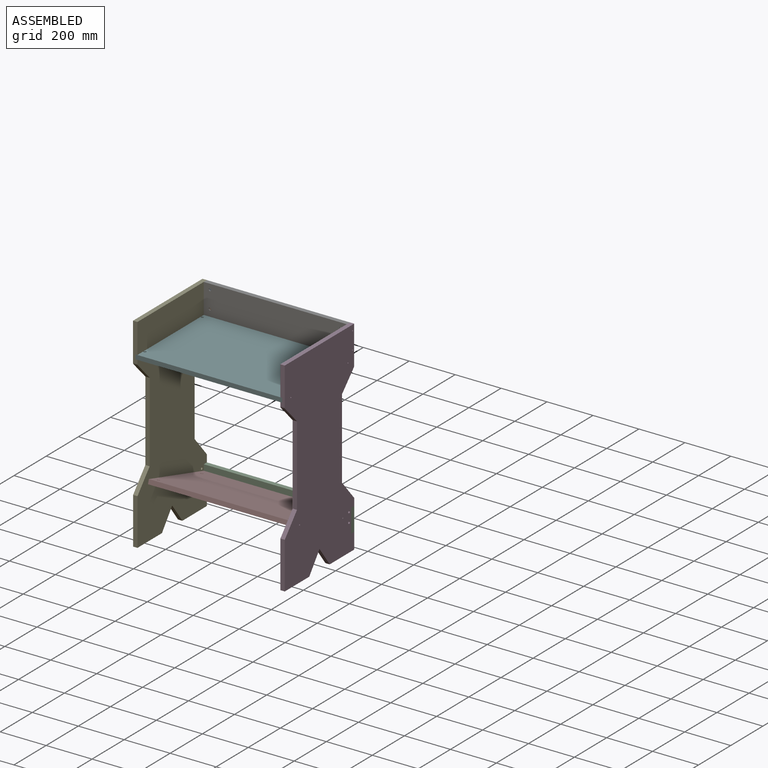
[diagram: assembled view]
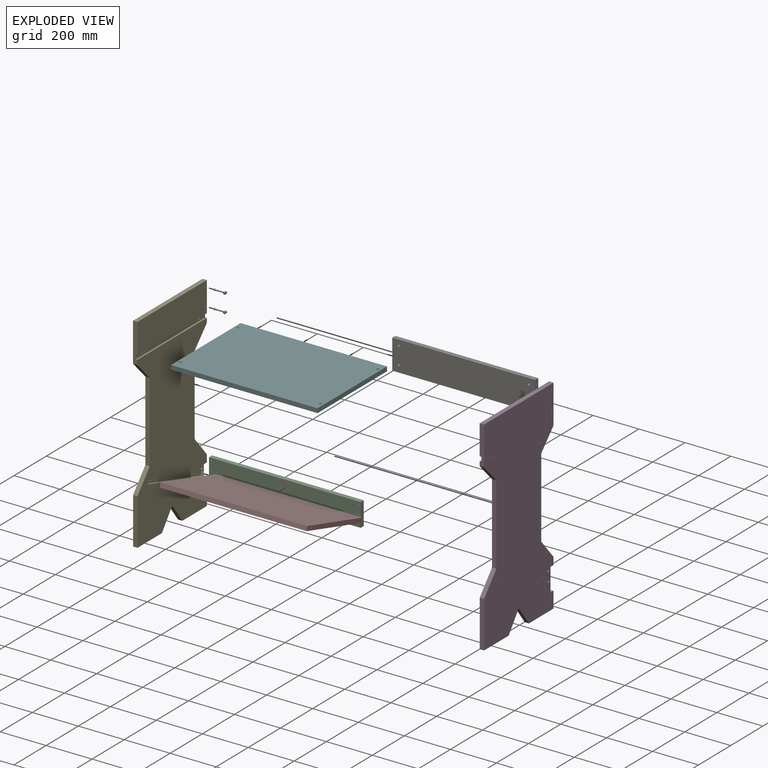
[diagram: exploded view]
GUIDED TOUR — MATED ASSEMBLY WITH SUBASSEMBLIES (Onshape document 586c0a6994bf4c102c246d1e, AutoMate assembly 586c0a6994bf4c102c246d1e_79e6db0add1751d0debfd375_e301d833208fc8bb05353f70_default)

This assembly has 10 component occurrences arranged in 8 top-level units: 6 individual components plus 2 subassemblies (S0, S1). The tour has two levels: first the top level, where each subassembly is treated as one rigid unit; then each subassembly is toured internally in its own section (nesting deeper than one subassembly level is flattened into its subassembly's section).

Components are labeled P0..P9 across the whole record; subassembly units are labeled S0..S1. A mate is a constraint between two units; its type names the relative motion it leaves free:
  FASTENED — locks the two components together rigidly (no relative motion),
  SLIDER — leaves translation along the listed axis free.
Axis/direction vectors are unit vectors and 'through' points are millimeter coordinates, both in the assembly's world frame.

TOP-LEVEL MATES (between units; each subassembly's internal mates are listed in its own section)
  1. FASTENED "Fastened 3": P6 <-> P5, direction (-1.000, 0.000, 0.000) through (-876.44, -210.24, 157.08) mm
  2. FASTENED "Fastened 6": S1 <-> P5, direction (-1.000, 0.000, 0.000) through (-887.87, 173.93, 196.79) mm
  3. FASTENED "Fastened 1": P8 <-> P4, direction (1.000, 0.000, 0.000) through (-237.63, -155.38, -364.90) mm
  4. FASTENED "Fastened 7": S0 <-> P5, direction (-1.000, 0.000, 0.000) through (-887.87, 173.93, 272.99) mm
  5. FASTENED "Fastened 5": P3 <-> P4, direction (0.000, -1.000, 0.000) through (-236.99, 164.73, -431.99) mm
  6. FASTENED "Fastened 4": P7 <-> P5, direction (-1.000, 0.000, 0.000) through (-868.82, 173.93, 272.99) mm
  7. FASTENED "Fastened 2": P8 <-> P5, direction (-1.000, 0.000, 0.000) through (-877.71, -155.38, -364.90) mm

TOP-LEVEL ASSEMBLY ORDER
  1. P6 — the base component [order verified]
  2. P5 [order verified]
  3. P4 [order verified]
  4. P3 [order verified]
  5. P7 [order verified]
  6. S1 [order verified]
  7. P8 [order verified]
  8. S0 [order verified]
(S1, P3, P4, P5 verified with a relaxed clearance tolerance: the source model stores slight part interference there.)
Order-tag legend:
  [order verified] — this step's position reverses a verified removal order: the component was checked to insert without passing through the ones already placed.

Of the 10 component occurrences, 2 carry the full construction recipe — the FeatureScript program that regenerates the part's solid from scratch; the rest are supplied as boundary geometry only. Each toured unit is shown spotlighted twice — assembled, then exploded with a leader line back to its socket (green = recipe-attached component, orange = geometry-only, blue = subassembly unit; the rest desaturated gray).
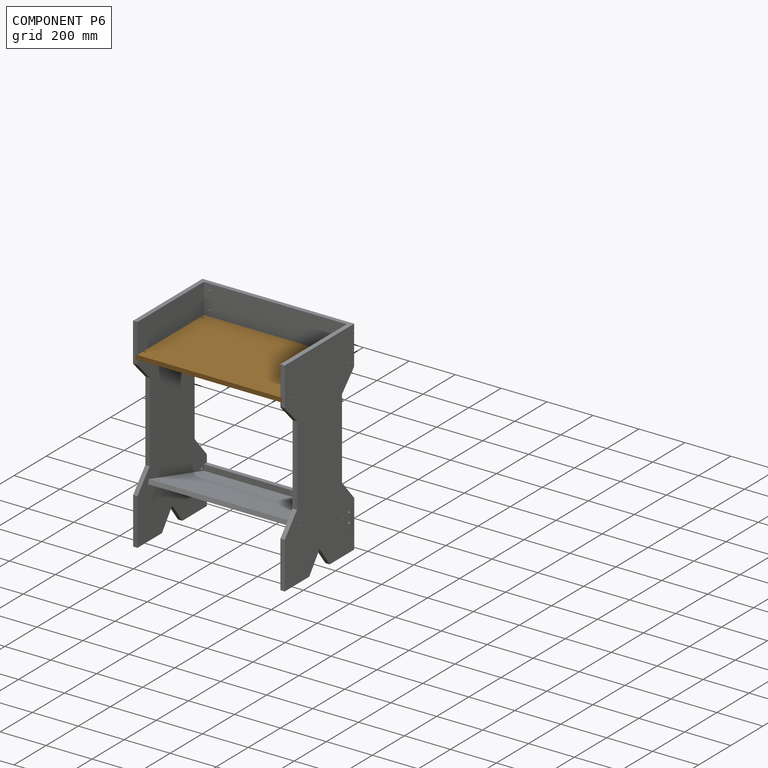
[diagram: component P6 — assembled]
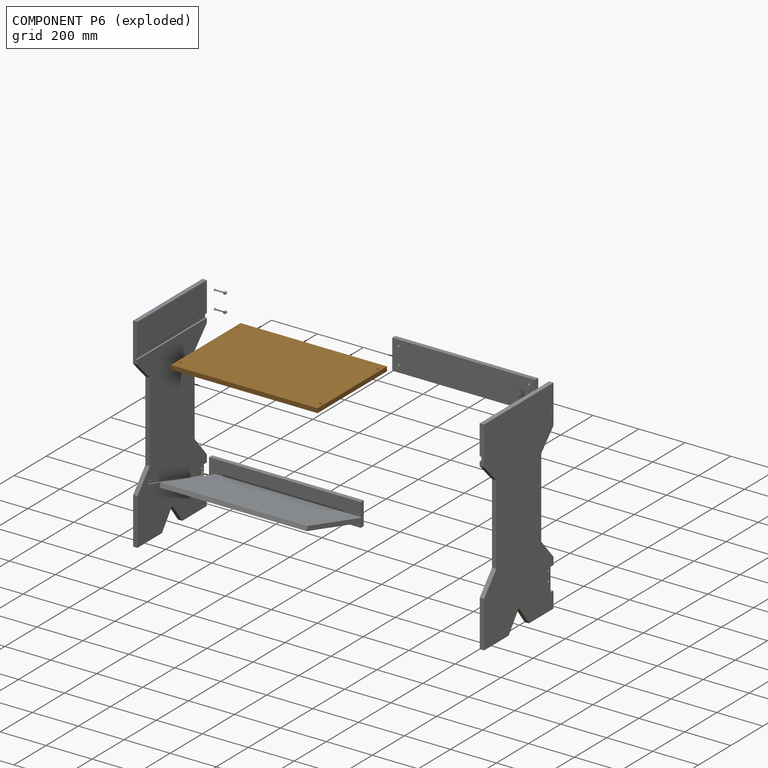
[diagram: component P6 — exploded]
COMPONENT P6 — geometry summary (no construction recipe available for this part):
  bounding box: 637.5 x 431.8 x 19.1 mm
  B-rep topology: 1 solid, 16 faces, 92 edges
  volume: 5211610 mm^3 (99% of its bounding box)
  symmetry: 2-fold rotationally symmetric about the x axis; 2-fold rotationally symmetric about the y axis; 2-fold rotationally symmetric about the z axis; mirror-symmetric across its x mid-plane, y mid-plane, z mid-plane
Held by: FASTENED mate "Fastened 3" to P5.
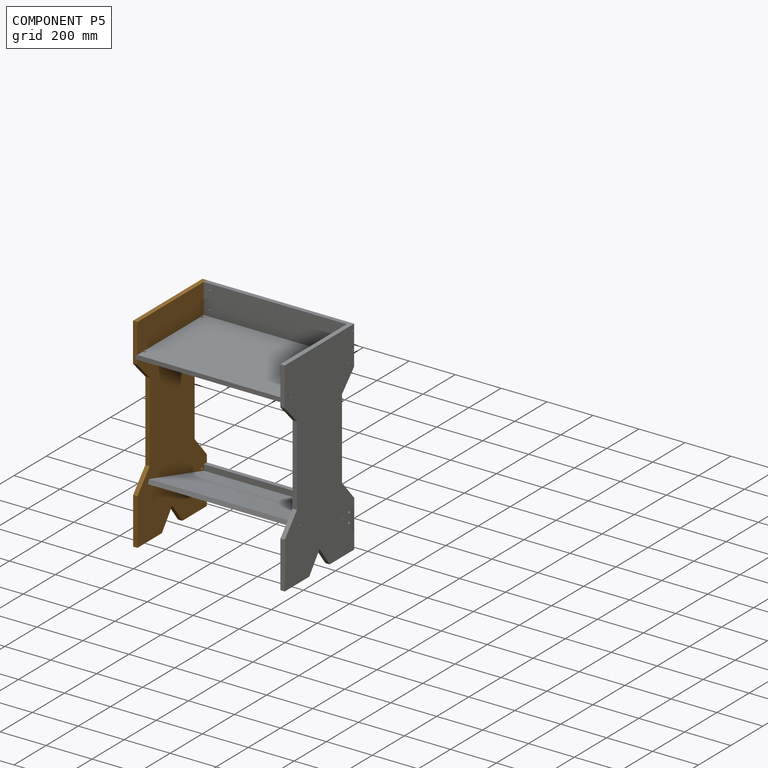
[diagram: component P5 — assembled]
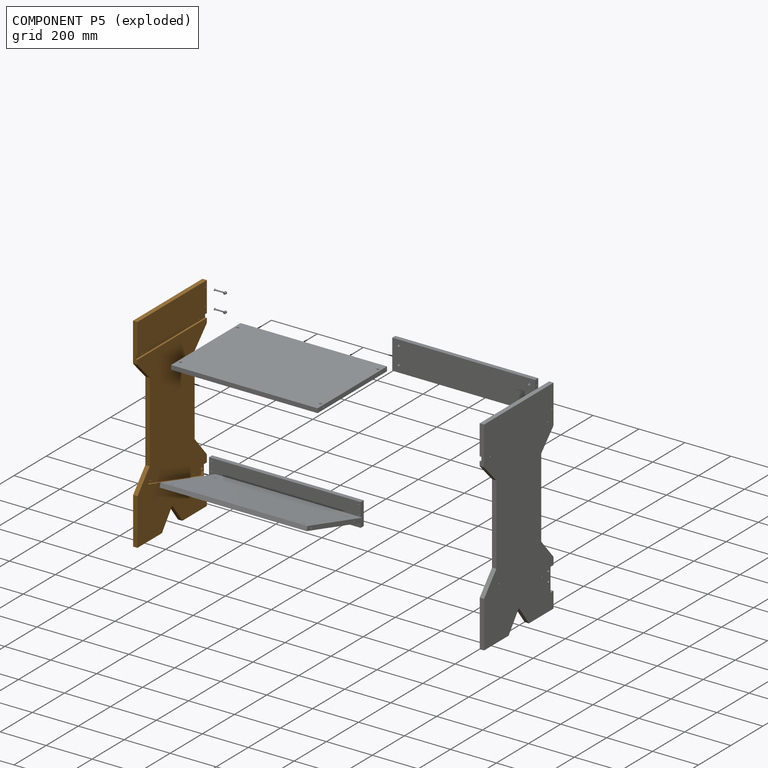
[diagram: component P5 — exploded]
COMPONENT P5 — geometry summary (no construction recipe available for this part):
  bounding box: 889.0 x 432.1 x 19.1 mm
  B-rep topology: 1 solid, 42 faces, 250 edges
  volume: 5787509 mm^3 (79% of its bounding box)
Held by: FASTENED mate "Fastened 3" to P6; FASTENED mate "Fastened 6" to P1; FASTENED mate "Fastened 7" to P0; FASTENED mate "Fastened 4" to P7; FASTENED mate "Fastened 2" to P8.
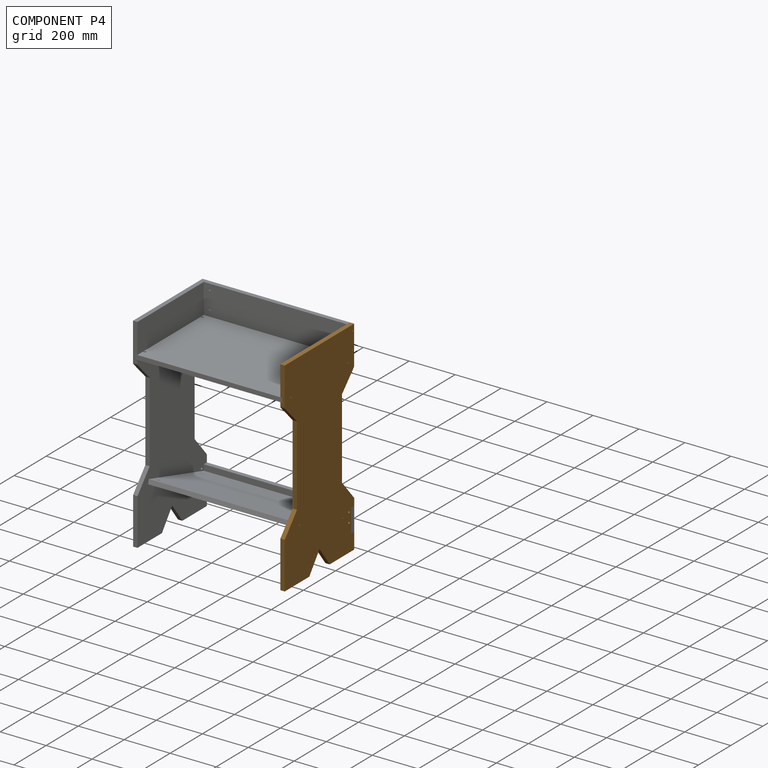
[diagram: component P4 — assembled]
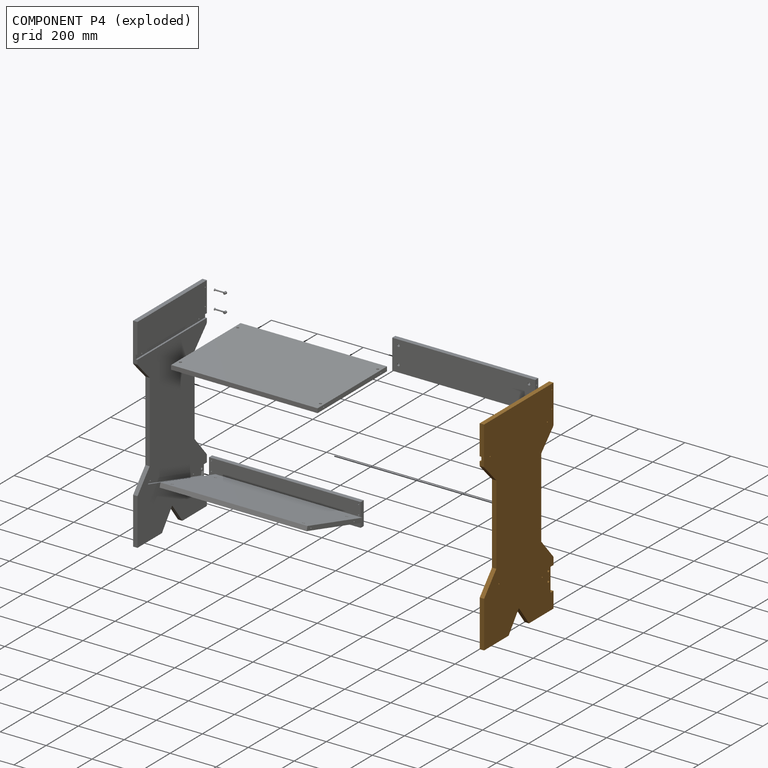
[diagram: component P4 — exploded]
COMPONENT P4 — geometry summary (no construction recipe available for this part):
  bounding box: 889.0 x 432.1 x 19.1 mm
  B-rep topology: 1 solid, 42 faces, 250 edges
  volume: 5787510 mm^3 (79% of its bounding box)
Held by: FASTENED mate "Fastened 1" to P8; FASTENED mate "Fastened 5" to P3.
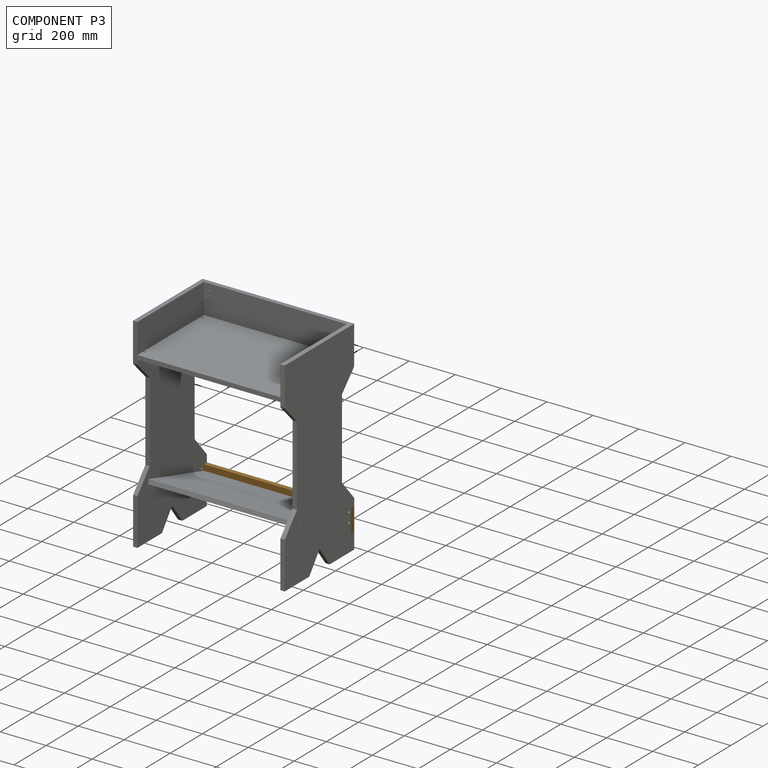
[diagram: component P3 — assembled]
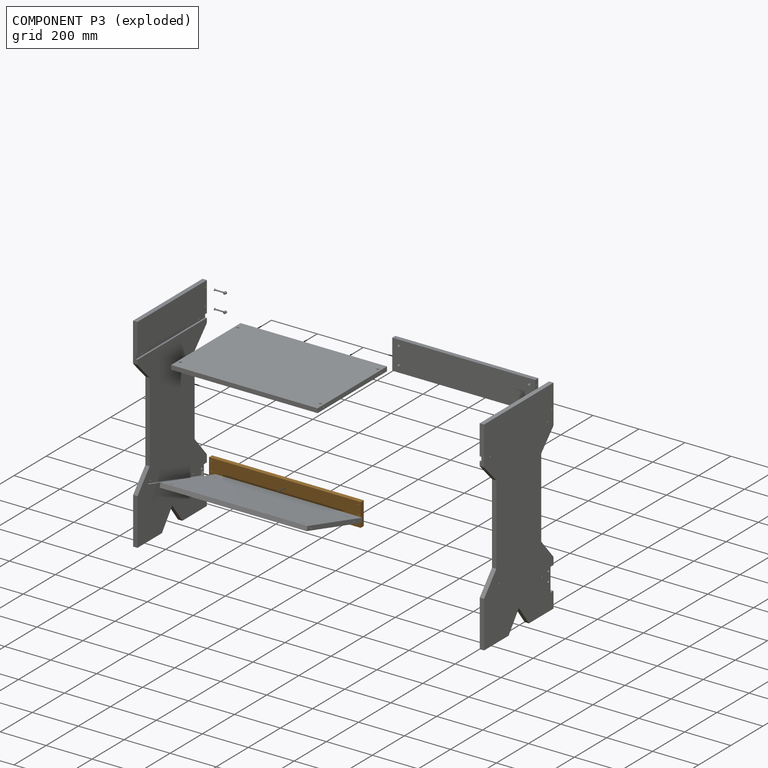
[diagram: component P3 — exploded]
COMPONENT P3 — geometry summary (no construction recipe available for this part):
  bounding box: 660.4 x 101.6 x 19.1 mm
  B-rep topology: 1 solid, 10 faces, 56 edges
  volume: 1276598 mm^3 (100% of its bounding box)
  symmetry: 2-fold rotationally symmetric about the z axis; mirror-symmetric across its x mid-plane, y mid-plane
Held by: FASTENED mate "Fastened 5" to P4.
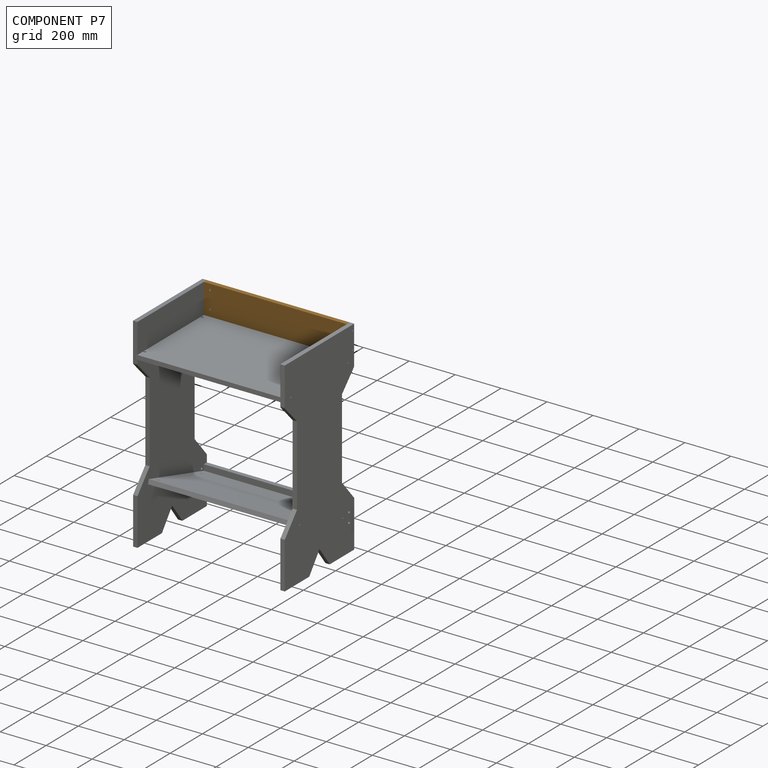
[diagram: component P7 — assembled]
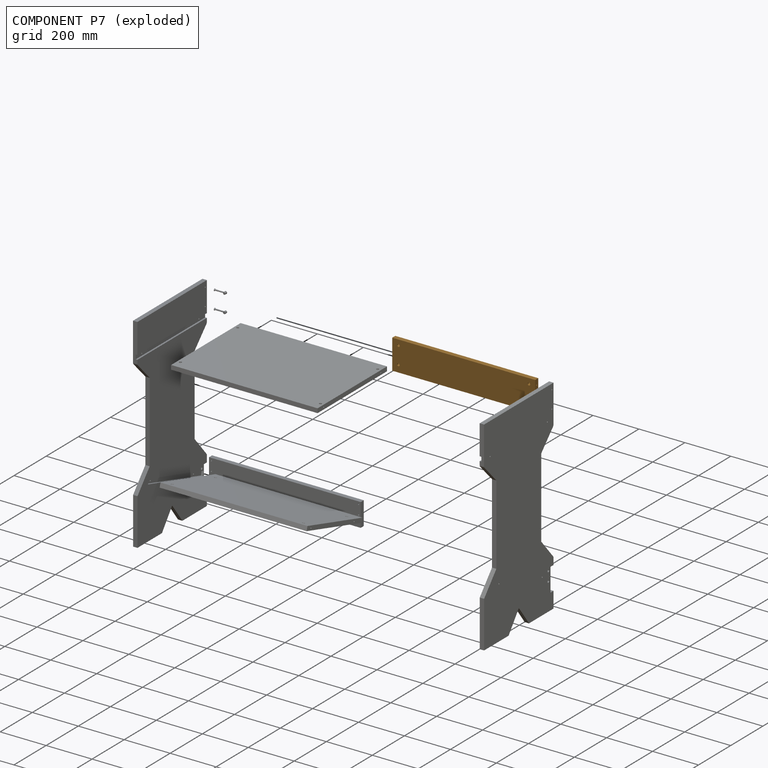
[diagram: component P7 — exploded]
COMPONENT P7 — geometry summary (no construction recipe available for this part):
  bounding box: 622.3 x 129.9 x 19.1 mm
  B-rep topology: 1 solid, 16 faces, 92 edges
  volume: 1507715 mm^3 (98% of its bounding box)
  symmetry: 2-fold rotationally symmetric about the z axis; mirror-symmetric across its x mid-plane, y mid-plane
Held by: FASTENED mate "Fastened 4" to P5.
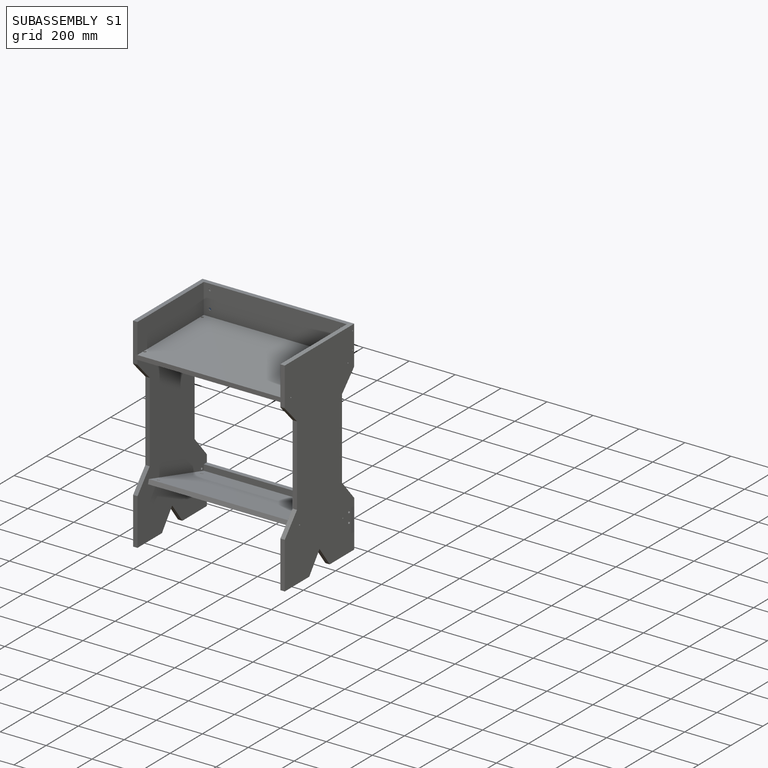
[diagram: subassembly S1 — assembled]
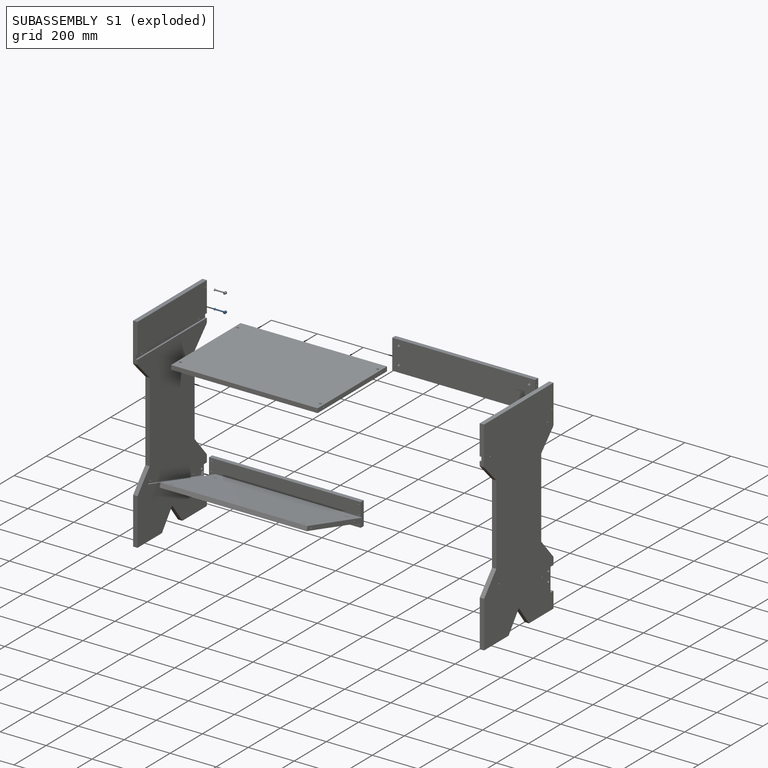
[diagram: subassembly S1 — exploded]
SUBASSEMBLY S1 — 2 components (P1, P9), of which 1 recipe-attached; toured below.
Held by: FASTENED mate "Fastened 6" to P5.
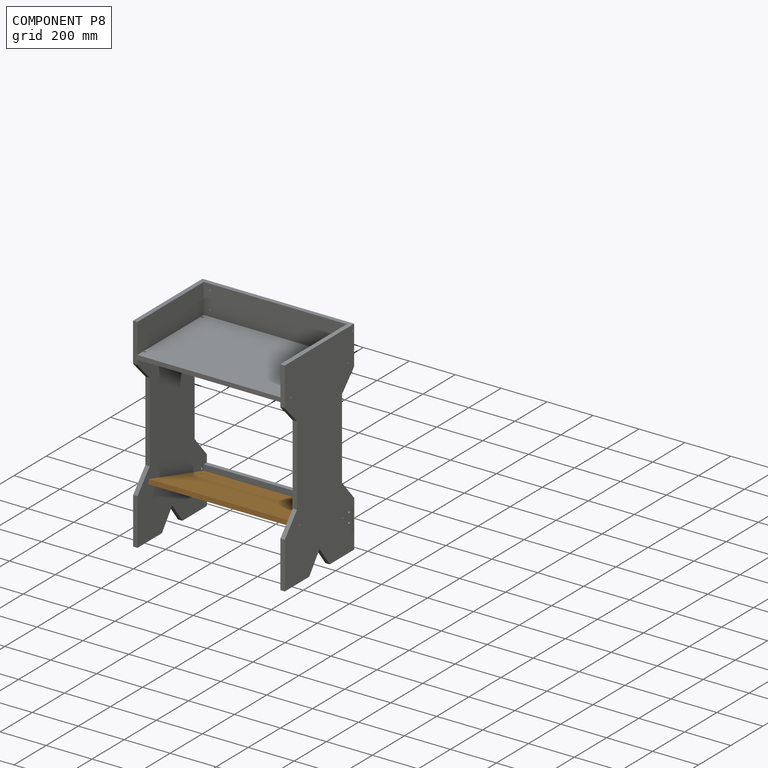
[diagram: component P8 — assembled]
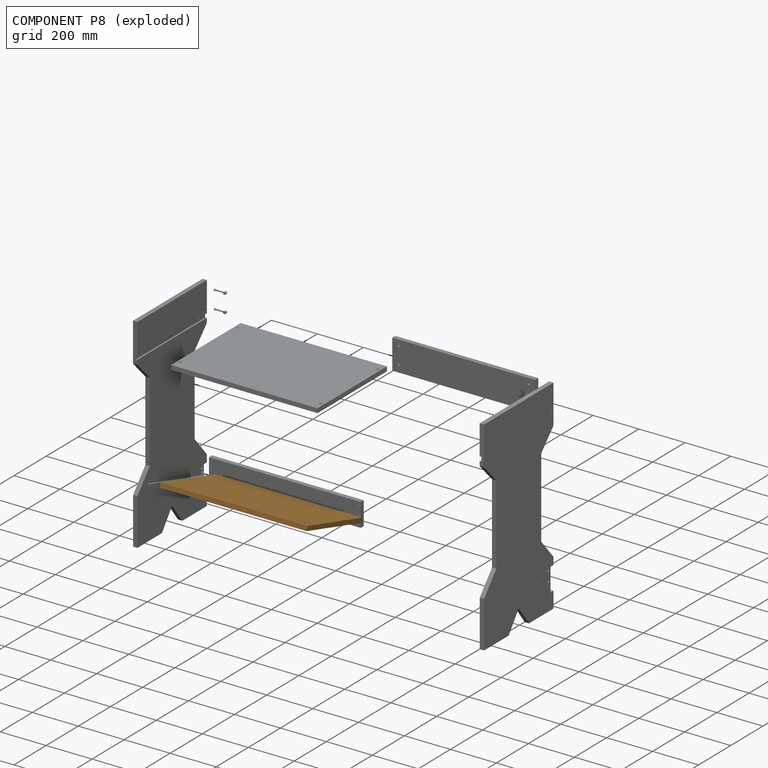
[diagram: component P8 — exploded]
COMPONENT P8 — geometry summary (no construction recipe available for this part):
  bounding box: 640.1 x 347.1 x 116.0 mm
  B-rep topology: 1 solid, 16 faces, 92 edges
  volume: 4303251 mm^3 (17% of its bounding box)
  symmetry: mirror-symmetric across its x mid-plane
Held by: FASTENED mate "Fastened 1" to P4; FASTENED mate "Fastened 2" to P5.
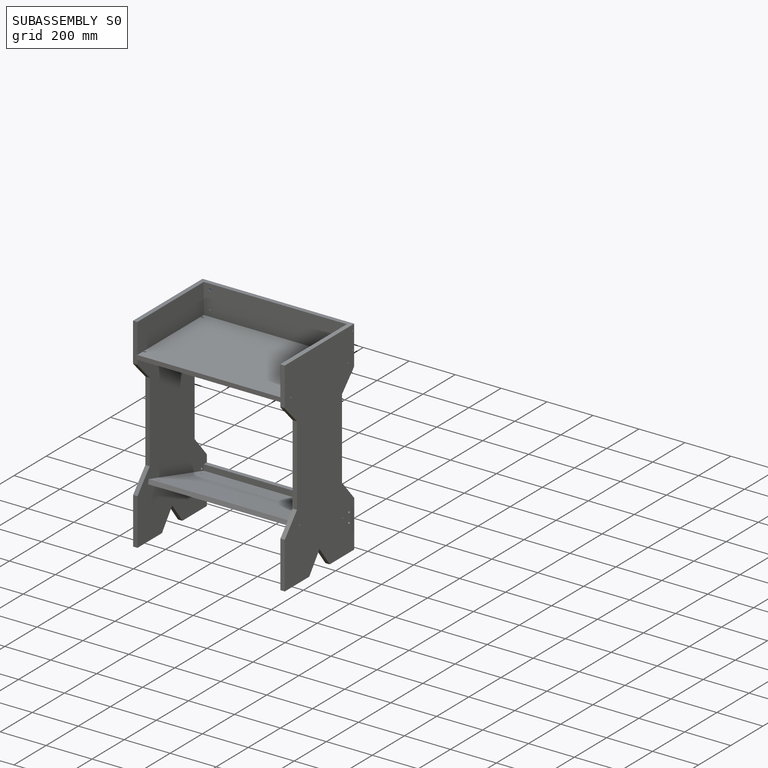
[diagram: subassembly S0 — assembled]
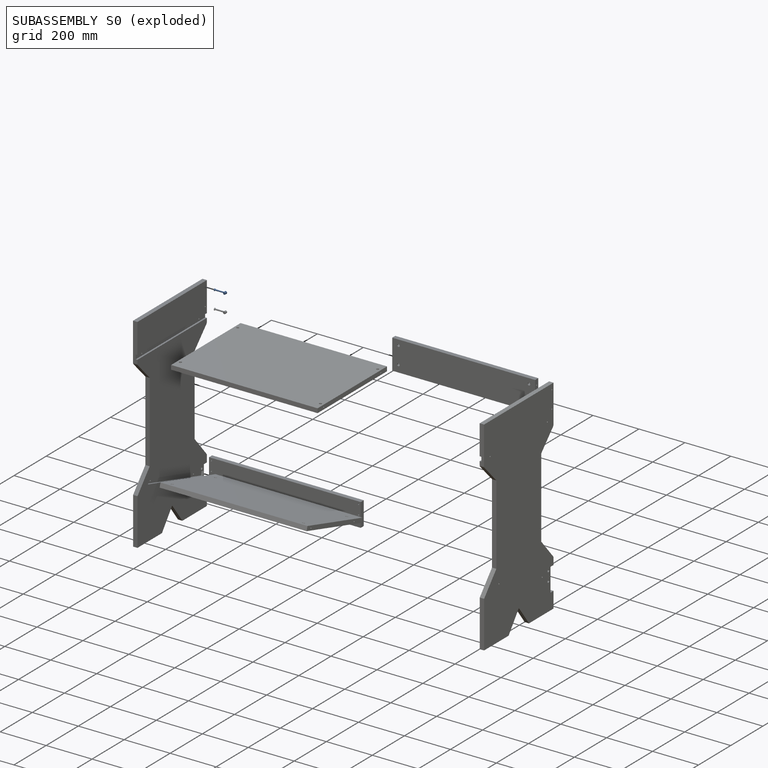
[diagram: subassembly S0 — exploded]
SUBASSEMBLY S0 — 2 components (P0, P2), of which 1 recipe-attached; toured below.
Held by: FASTENED mate "Fastened 7" to P5.
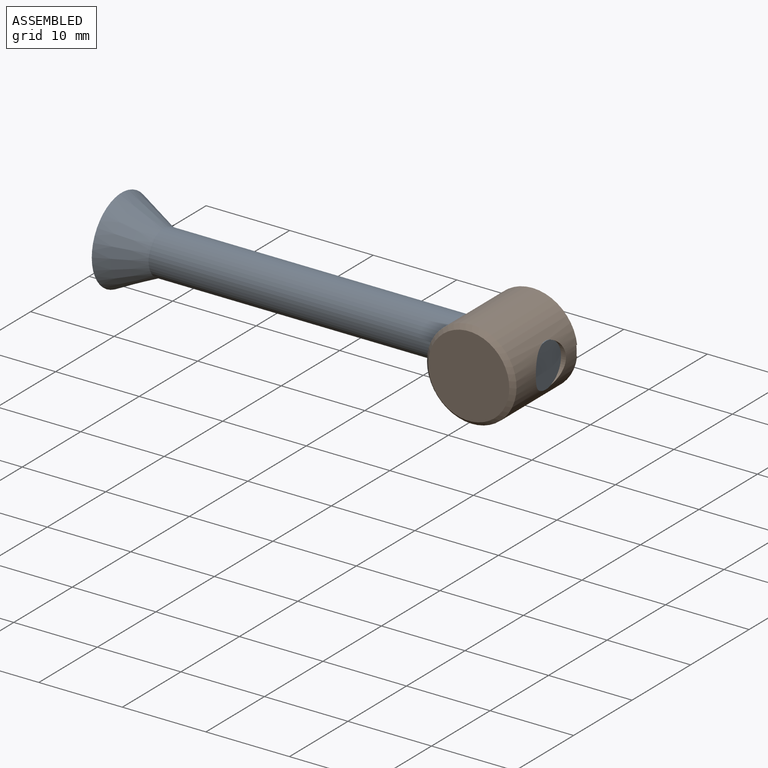
[diagram: subassembly S0 — assembled view]
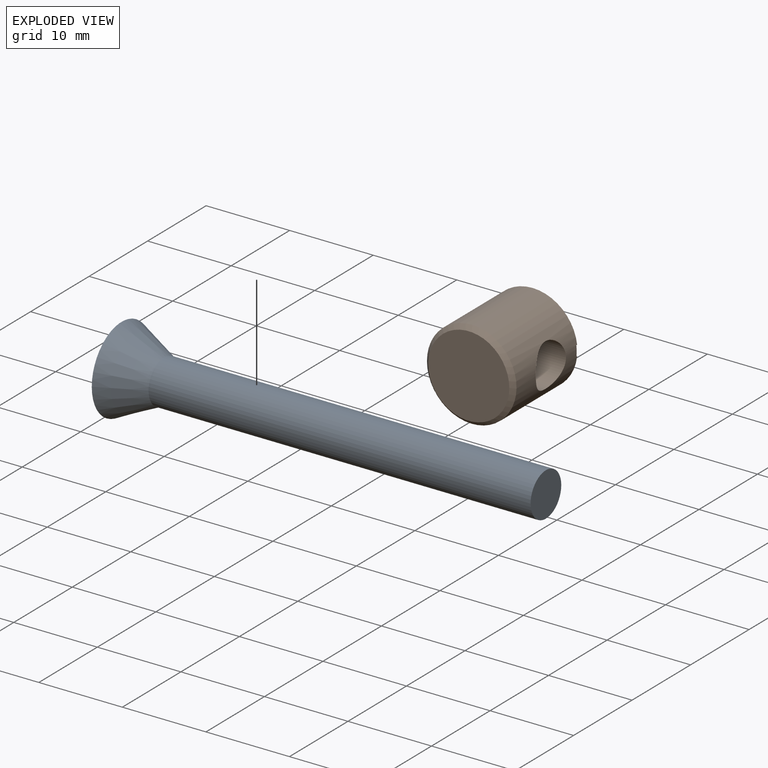
[diagram: subassembly S0 — exploded view]
SUBASSEMBLY S0 TOUR — 2 components, shown here in isolation at its own camera.

INTERNAL MATES
  1. SLIDER "Slider 1": P0 <-> P2, axis (1.000, 0.000, 0.000) through (-837.07, 173.93, 272.99) mm
  2. SLIDER "Slider 1": P0 <-> P2, axis (1.000, 0.000, 0.000) through (-837.07, 173.93, 272.99) mm

ASSEMBLY ORDER (within the subassembly)
  1. P2 — the base component [order verified]
  2. P0 [order verified]
Order-tag legend:
  [order verified] — this step's position reverses a verified removal order: the component was checked to insert without passing through the ones already placed.
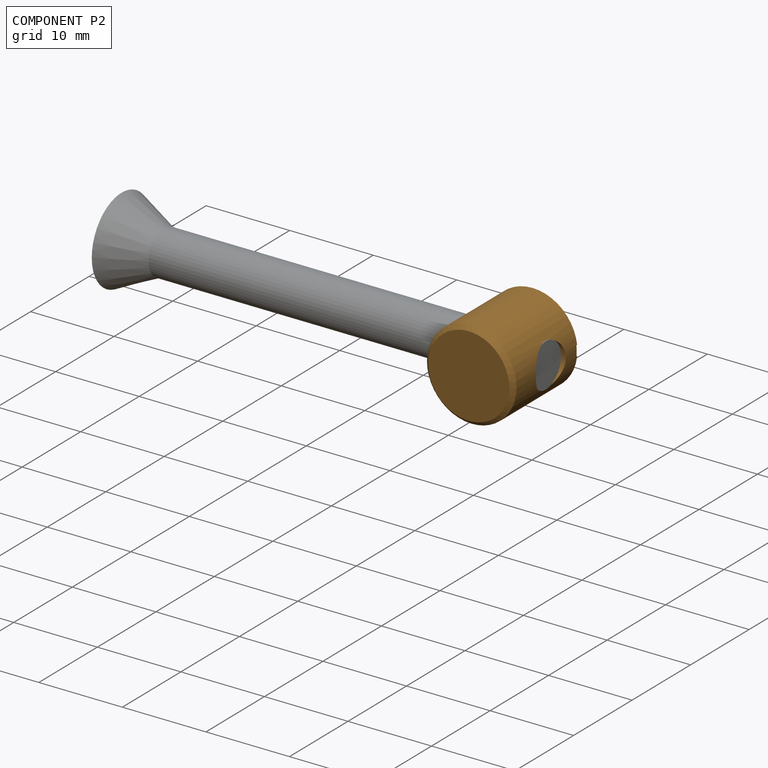
[diagram: component P2 — assembled]
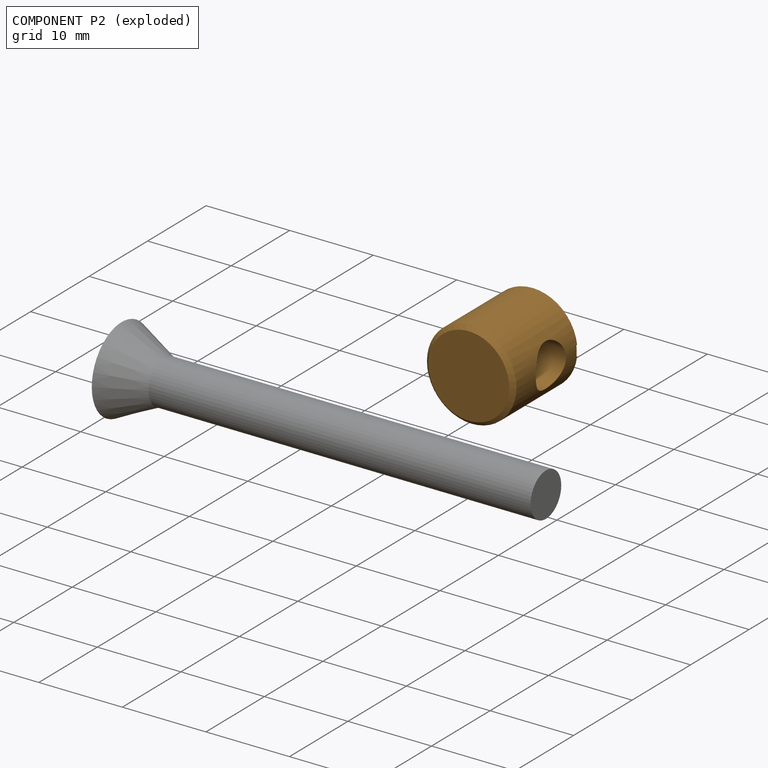
[diagram: component P2 — exploded]
COMPONENT P2 — geometry summary (no construction recipe available for this part):
  bounding box: 11.4 x 10.7 x 10.7 mm
  B-rep topology: 1 solid, 11 faces, 58 edges
  volume: 797 mm^3 (61% of its bounding box)
  symmetry: 2-fold rotationally symmetric about the z axis; mirror-symmetric across its x mid-plane, y mid-plane
Held by: SLIDER mate "Slider 1" to P0; SLIDER mate "Slider 1" to P0.
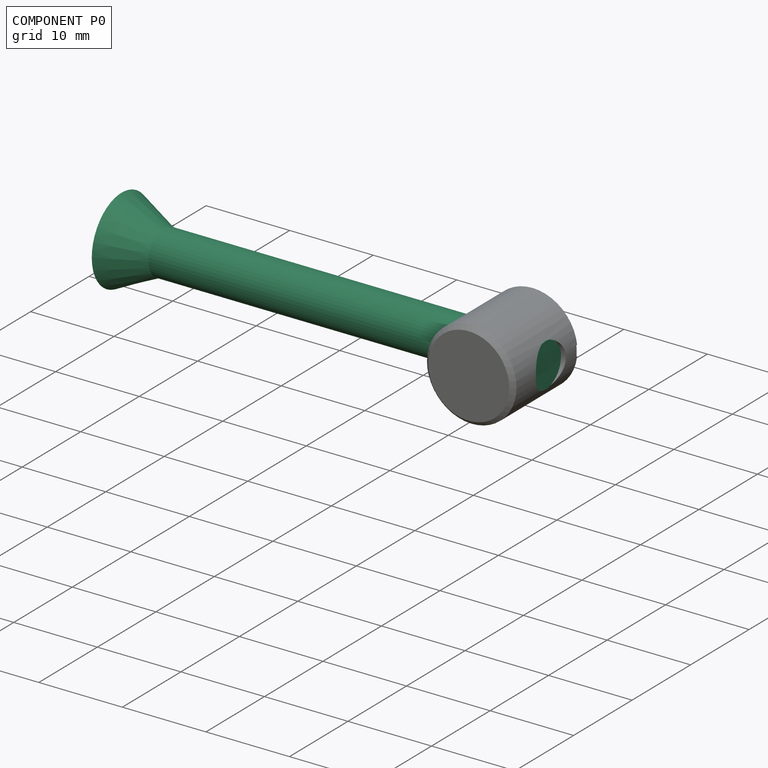
[diagram: component P0 — assembled]
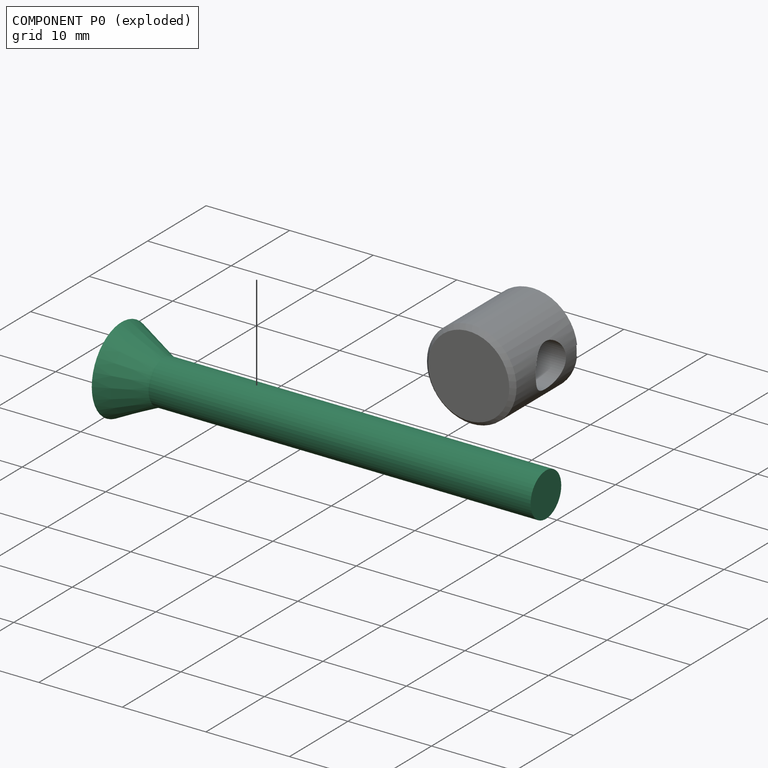
[diagram: component P0 — exploded]
COMPONENT P0 — recipe-attached (CADFS 00419674, mesh-verified: the recipe's output STEP matches this component's geometry to below the mesh-comparison resolution (tessellation chordal tolerance ~0.0792 mm)).
Held by: SLIDER mate "Slider 1" to P2; SLIDER mate "Slider 1" to P2.
Construction recipe (FeatureScript — the CAD program that rebuilds this solid; sketch coordinates are in the units given by the * unit suffixes, e.g. mm):

FeatureScript 1511;
import(path : "onshape/std/geometry.fs", version : "1511.0");
import(path : "onshape/std/common.fs", version : "1511.0");
const mm = millimeter;
const VERTEX = EntityType.VERTEX;
const EDGE = EntityType.EDGE;
const FACE = EntityType.FACE;
const BODY = EntityType.BODY;
function v(x, y){return vector(x, y);}
function OD(order){return orderDisambiguation(order);}
function OSD(set){return originalSetDisambiguation(set);}
function TD(topology){return topologyDisambiguation(topology);}
function TDD(query){return trueDependencyDisambiguation(query);}
function sQuery(a, b, c) {return sketchEntityQuery(a, b, c);}

annotation { "Feature Type Name" : "Feature", "Feature Type Description" : "" }
export const myFeature = defineFeature(function(context is Context, id is Id, definition is map)
    precondition{}
    {
        {
            var Q0;
            Q0=qCreatedBy(makeId("Right.planeOp"),FACE);
            var sketch = newSketch(context, id + "F0", { "sketchPlane" : qUnion([Q0])});
            skCircle(sketch, "E0", {"center": v(0, 0) * mm, "radius": 2.62 * mm});
            skSolve(sketch);
        }
        {
            var Q0;
            Q0=qSketchRegion(id+"F0",true);
            extrude(context, id + "F1", {"entities" : qUnion([Q0]), "depth" : 45.72 * mm, "offsetDistance" : 25.4 * mm});
        }
        {
            var Q0;
            Q0=qCreatedBy(makeId("Front.planeOp"),FACE);
            var sketch = newSketch(context, id + "F2", { "sketchPlane" : qUnion([Q0])});
            skLineSegment(sketch, "E1.0", {"start": v(45.72, 2.62) * mm, "end": v(45.72, -2.62) * mm});
            skLineSegment(sketch, "E2", {"start": v(45.72, 2.62) * mm, "end": v(50.8, 5.08) * mm});
            skLineSegment(sketch, "E3", {"start": v(50.8, 5.08) * mm, "end": v(50.8, 0) * mm});
            skLineSegment(sketch, "E4", {"start": v(50.8, 0) * mm, "end": v(45.72, 0) * mm});
            skLineSegment(sketch, "E5", {"start": v(45.72, 0) * mm, "end": v(45.72, 2.62) * mm});
            skSolve(sketch);
        }
        {
            var Q0;
            Q0=makeQuery(id+"F2.imprint","IMPRINT",FACE,{"disambiguationData":[TD([[makeQuery(id+"F2.imprint","IMPRINT",EDGE,{"derivedFrom":sQuery(id+"F2.wireOp",EDGE,"E2")}),-1.0]])]});
            var Q1;
            Q1=sQuery(id+"F2.wireOp",EDGE,"E4");
            revolve(context, id + "F3", {"operationType" : NewBodyOperationType.ADD, "entities" : qUnion([Q0]), "axis" : qUnion([Q1]), "revolveType" : RevolveType.FULL});
        }
    });
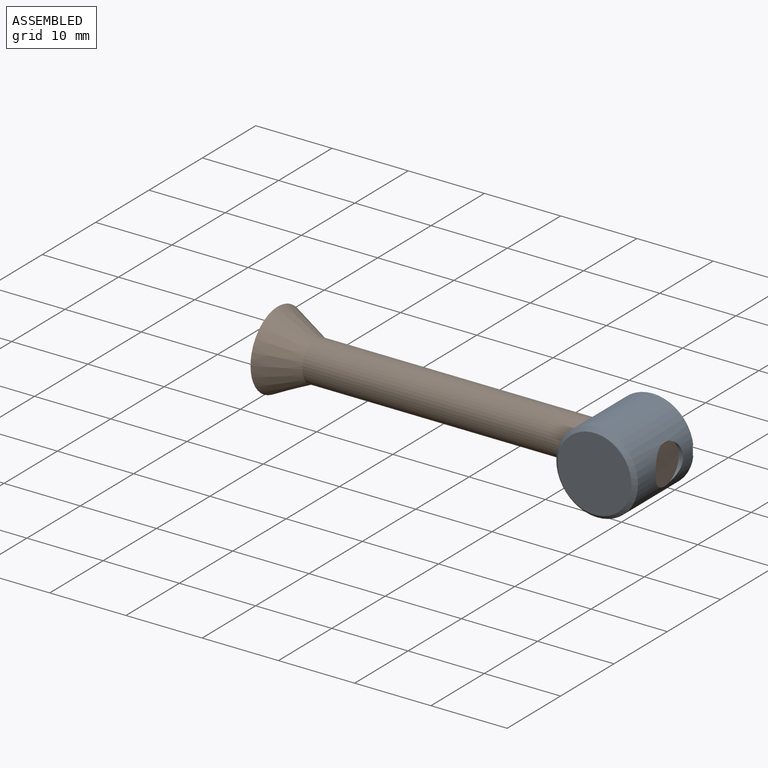
[diagram: subassembly S1 — assembled view]
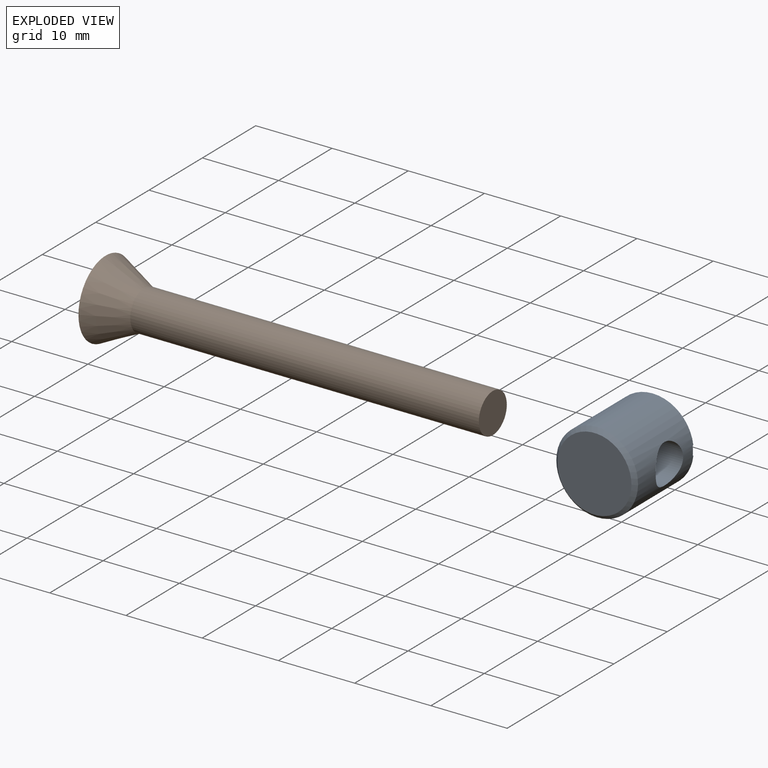
[diagram: subassembly S1 — exploded view]
SUBASSEMBLY S1 TOUR — 2 components, shown here in isolation at its own camera.

INTERNAL MATES
  1. SLIDER "Slider 1": P9 <-> P1, axis (1.000, 0.000, 0.000) through (-837.07, 173.93, 196.79) mm
  2. SLIDER "Slider 1": P9 <-> P1, axis (1.000, 0.000, 0.000) through (-837.07, 173.93, 196.79) mm

ASSEMBLY ORDER (within the subassembly)
  1. P1 — the base component [order verified]
  2. P9 [order verified]
Order-tag legend:
  [order verified] — this step's position reverses a verified removal order: the component was checked to insert without passing through the ones already placed.
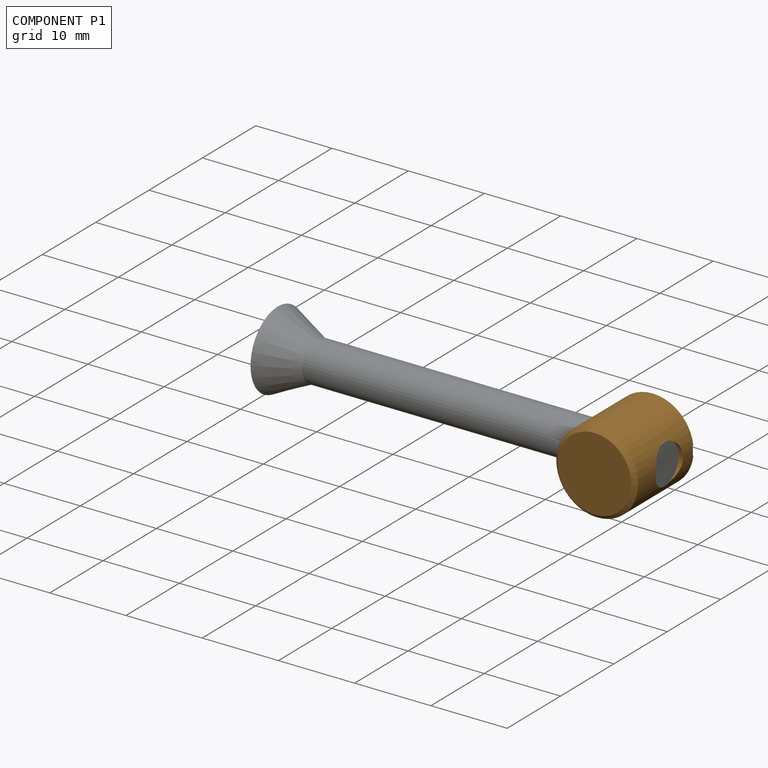
[diagram: component P1 — assembled]
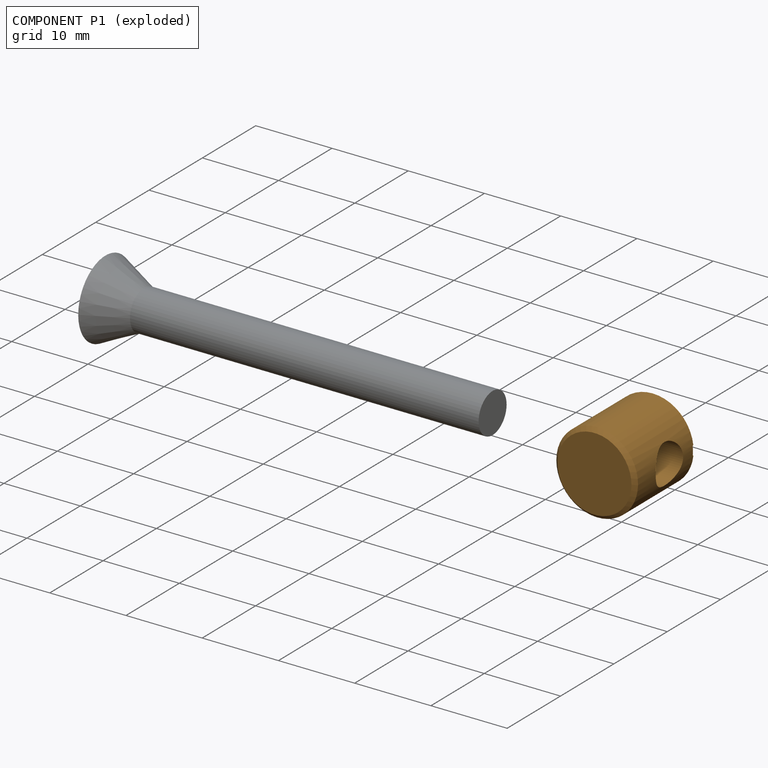
[diagram: component P1 — exploded]
COMPONENT P1 — geometry summary (no construction recipe available for this part):
  bounding box: 11.4 x 10.7 x 10.7 mm
  B-rep topology: 1 solid, 11 faces, 58 edges
  volume: 797 mm^3 (61% of its bounding box)
  symmetry: 2-fold rotationally symmetric about the z axis; mirror-symmetric across its x mid-plane, y mid-plane
Held by: SLIDER mate "Slider 1" to P9; SLIDER mate "Slider 1" to P9.
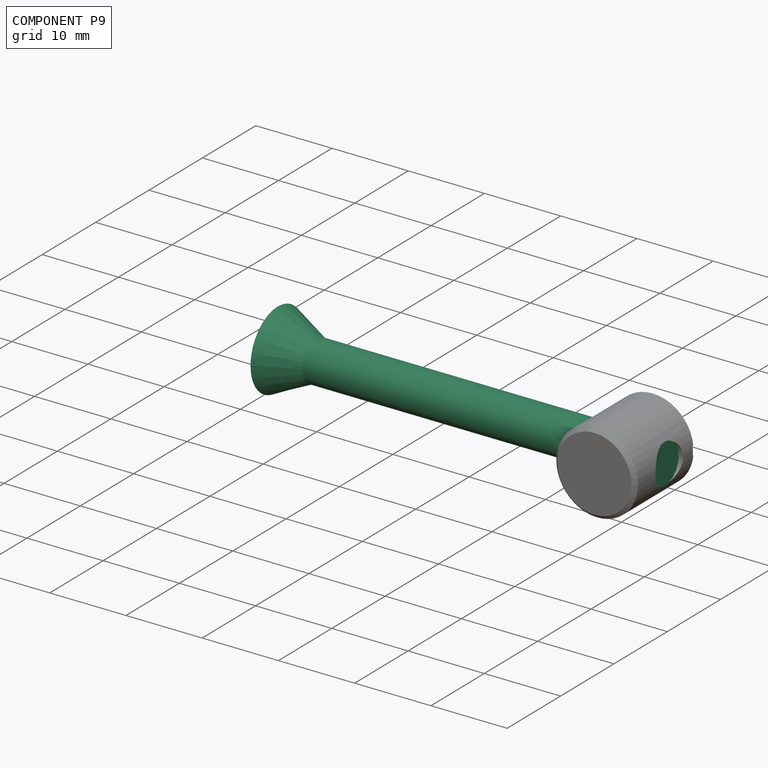
[diagram: component P9 — assembled]
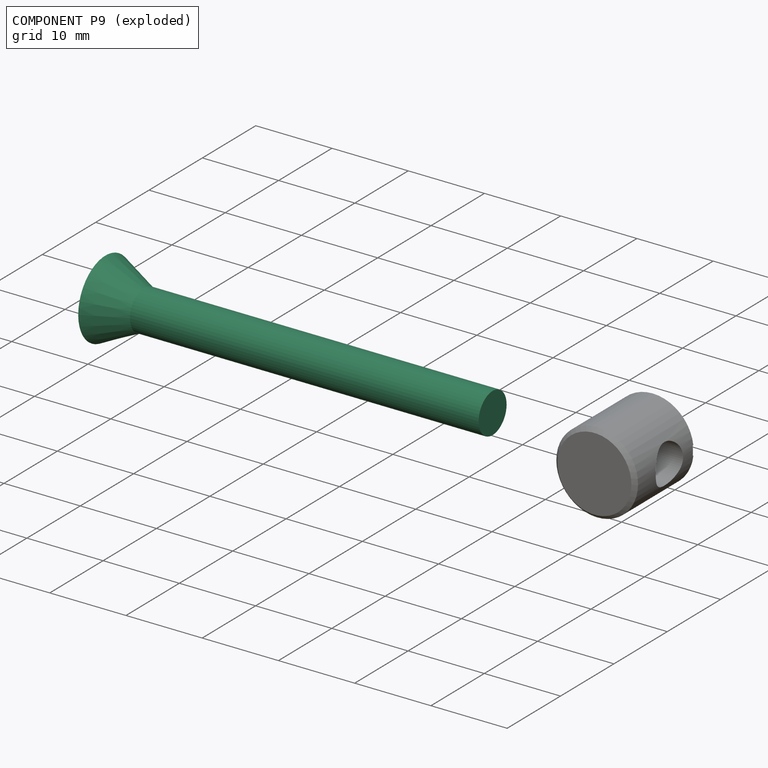
[diagram: component P9 — exploded]
COMPONENT P9 — recipe-attached (CADFS 00419674, mesh-verified: the recipe's output STEP matches this component's geometry to below the mesh-comparison resolution (tessellation chordal tolerance ~0.0792 mm)).
Held by: SLIDER mate "Slider 1" to P1; SLIDER mate "Slider 1" to P1.
Construction recipe (FeatureScript — the CAD program that rebuilds this solid; sketch coordinates are in the units given by the * unit suffixes, e.g. mm):

FeatureScript 1511;
import(path : "onshape/std/geometry.fs", version : "1511.0");
import(path : "onshape/std/common.fs", version : "1511.0");
const mm = millimeter;
const VERTEX = EntityType.VERTEX;
const EDGE = EntityType.EDGE;
const FACE = EntityType.FACE;
const BODY = EntityType.BODY;
function v(x, y){return vector(x, y);}
function OD(order){return orderDisambiguation(order);}
function OSD(set){return originalSetDisambiguation(set);}
function TD(topology){return topologyDisambiguation(topology);}
function TDD(query){return trueDependencyDisambiguation(query);}
function sQuery(a, b, c) {return sketchEntityQuery(a, b, c);}

annotation { "Feature Type Name" : "Feature", "Feature Type Description" : "" }
export const myFeature = defineFeature(function(context is Context, id is Id, definition is map)
    precondition{}
    {
        {
            var Q0;
            Q0=qCreatedBy(makeId("Right.planeOp"),FACE);
            var sketch = newSketch(context, id + "F0", { "sketchPlane" : qUnion([Q0])});
            skCircle(sketch, "E0", {"center": v(0, 0) * mm, "radius": 2.62 * mm});
            skSolve(sketch);
        }
        {
            var Q0;
            Q0=qSketchRegion(id+"F0",true);
            extrude(context, id + "F1", {"entities" : qUnion([Q0]), "depth" : 45.72 * mm, "offsetDistance" : 25.4 * mm});
        }
        {
            var Q0;
            Q0=qCreatedBy(makeId("Front.planeOp"),FACE);
            var sketch = newSketch(context, id + "F2", { "sketchPlane" : qUnion([Q0])});
            skLineSegment(sketch, "E1.0", {"start": v(45.72, 2.62) * mm, "end": v(45.72, -2.62) * mm});
            skLineSegment(sketch, "E2", {"start": v(45.72, 2.62) * mm, "end": v(50.8, 5.08) * mm});
            skLineSegment(sketch, "E3", {"start": v(50.8, 5.08) * mm, "end": v(50.8, 0) * mm});
            skLineSegment(sketch, "E4", {"start": v(50.8, 0) * mm, "end": v(45.72, 0) * mm});
            skLineSegment(sketch, "E5", {"start": v(45.72, 0) * mm, "end": v(45.72, 2.62) * mm});
            skSolve(sketch);
        }
        {
            var Q0;
            Q0=makeQuery(id+"F2.imprint","IMPRINT",FACE,{"disambiguationData":[TD([[makeQuery(id+"F2.imprint","IMPRINT",EDGE,{"derivedFrom":sQuery(id+"F2.wireOp",EDGE,"E2")}),-1.0]])]});
            var Q1;
            Q1=sQuery(id+"F2.wireOp",EDGE,"E4");
            revolve(context, id + "F3", {"operationType" : NewBodyOperationType.ADD, "entities" : qUnion([Q0]), "axis" : qUnion([Q1]), "revolveType" : RevolveType.FULL});
        }
    });
PROVENANCE & LICENSES
Assembly (occurrences, transforms, mates, per-part STEP geometry): AutoMate dataset, Zenodo record 7776208, CC0.
Construction recipes: CADFS (HuggingFace VladPyatov/CADFS, CC-BY-4.0, layered over the ABC dataset), FeatureScript reconstruction programs keyed by ABC model id.
Join: ABC meta listings map ABC model id -> Onshape documentId; within a shared document, parts are matched by geometric signature (bounding-box dims + volume at 0.1% relative tolerance, exact B-rep face/solid counts).
Verification: 2 of this assembly's 10 components carry a recipe attachment, and every attachment is mesh-verified: the CADFS STEP and the AutoMate member STEP were compared as meshes in their shared local frame (symmetric sampled-point-to-mesh distance); worst across the 2 attachments: below the mesh-comparison resolution (tessellation chordal tolerance ~0.0792 mm) on a 53 mm part.
Renders: orthographic iso camera (az 35 / el 25); the floor grid conveys scale (grid pitch printed in each image; no ruler). In the exploded view each component is displaced by its stored offset vector: the offsets alone carry the explosion direction (mate normal/axis signs are not orientation cues and do not encode it), and separation distances are assigned per mate-chain, not proportionally to assembly-order depth.
